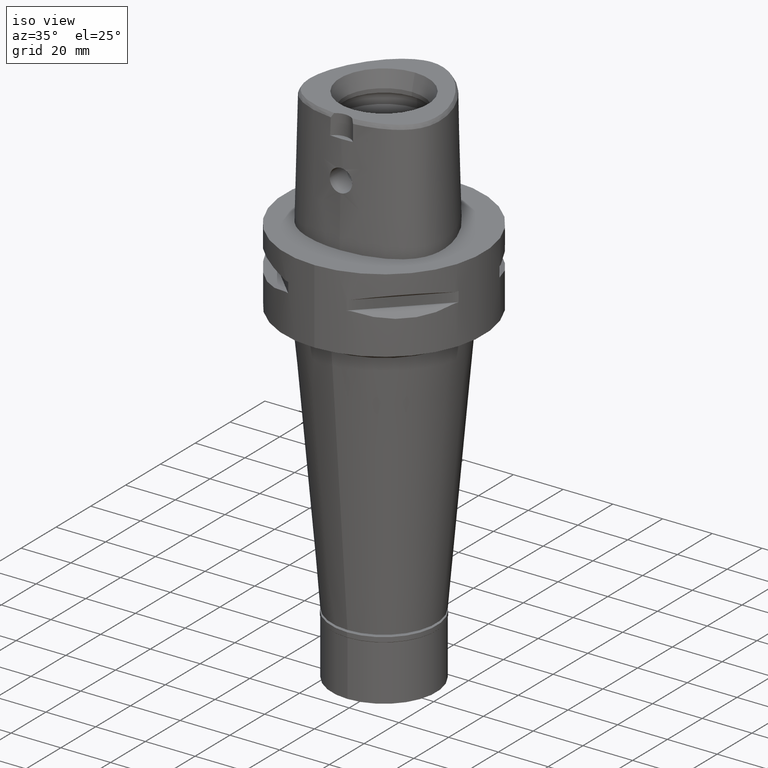
[diagram: clean part render]
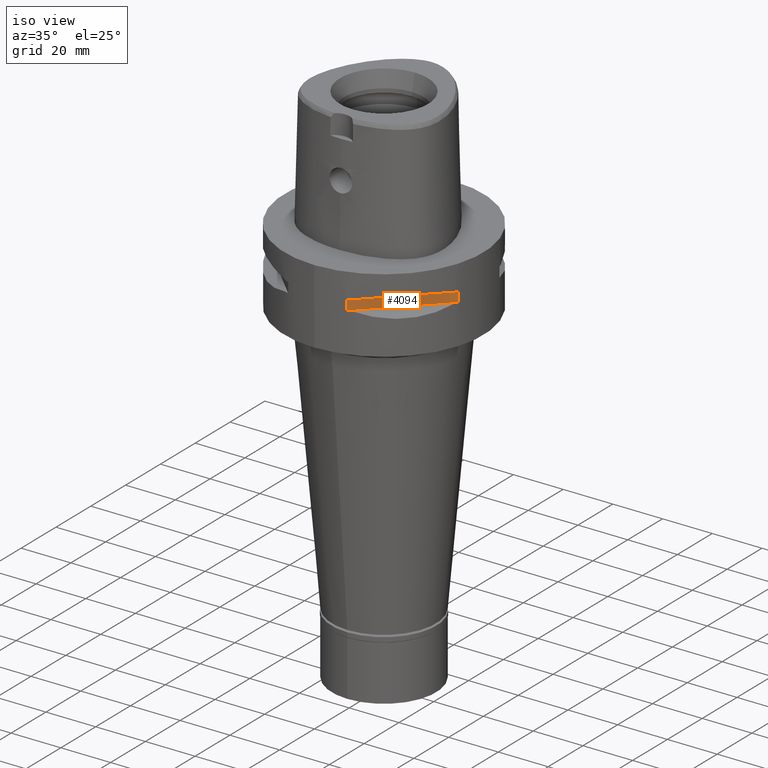
[diagram: same view with one face highlighted and labeled with its STEP entity id]
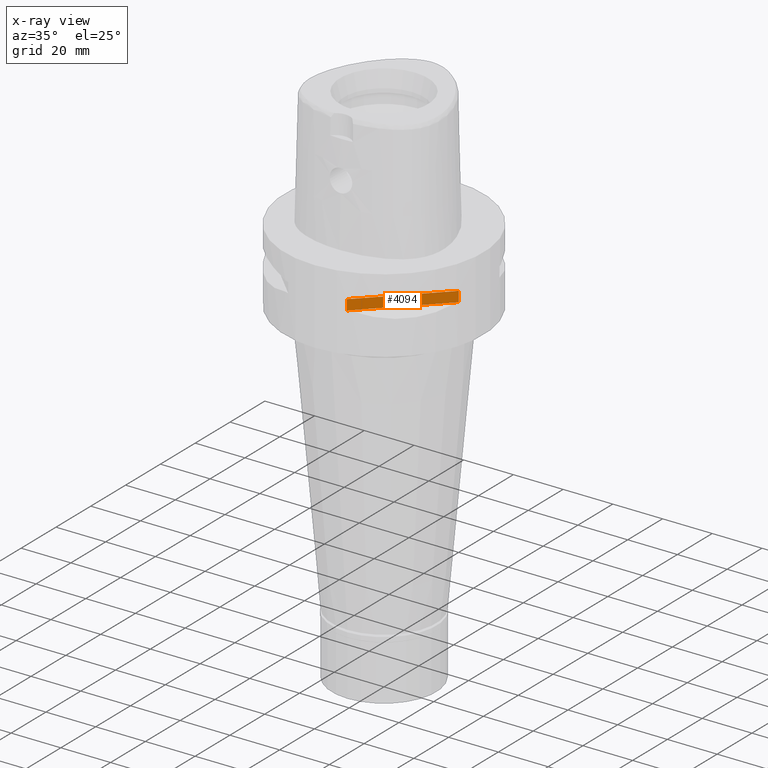
[diagram: x-ray of the same camera — body ghosted, the highlighted face saturated]
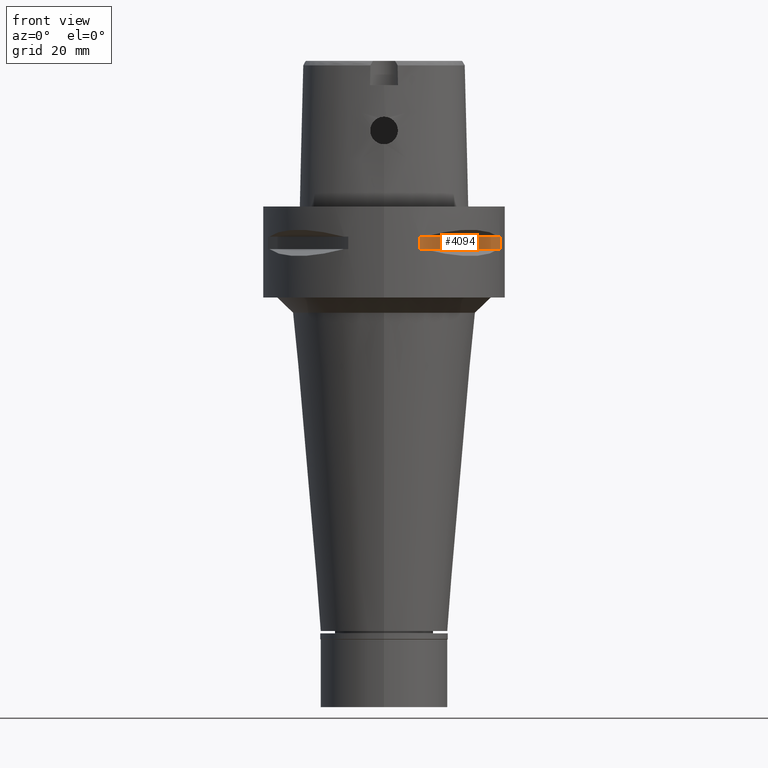
[diagram: same view with one face highlighted and labeled with its STEP entity id]
A machine part, iso view. The second image highlights one B-rep face of the part: STEP entity #4094.
The next image is the same camera in x-ray: the body ghosted, the highlighted face saturated — about 0% of this face is hidden behind the body in this view.
A second angle (front view) of the same face is appended — the face is thin or edge-on in the first view.
In plain terms, the highlighted planar face has unit normal (-0.7071, 0.7071, 0).
Its self-contained STEP definition (entity closure, byte-faithful):
#62 = CARTESIAN_POINT ( 'NONE',  ( 11.76033600280999991, -38.23211342708000160, -9.950000000000001066 ) ) ;
#363 = VECTOR ( 'NONE', #2994, 1000.000000000000000 ) ;
#414 = CARTESIAN_POINT ( 'NONE',  ( 11.76033600280999991, -38.23211342708000160, -9.950000000000001066 ) ) ;
#576 = DIRECTION ( 'NONE',  ( 0.0000000000000000000, 0.0000000000000000000, -1.000000000000000000 ) ) ;
#593 = VECTOR ( 'NONE', #576, 1000.000000000000000 ) ;
#684 = EDGE_CURVE ( 'NONE', #2365, #4806, #2127, .T. ) ;
#1074 = EDGE_CURVE ( 'NONE', #4806, #2838, #1700, .T. ) ;
#1178 = EDGE_LOOP ( 'NONE', ( #1202, #4424, #4679, #2623 ) ) ;
#1202 = ORIENTED_EDGE ( 'NONE', *, *, #4818, .F. ) ;
#1437 = CARTESIAN_POINT ( 'NONE',  ( 38.23211342708000160, -11.76033600280999991, -14.05000000000000071 ) ) ;
#1466 = LINE ( 'NONE', #1437, #363 ) ;
#1543 = AXIS2_PLACEMENT_3D ( 'NONE', #5000, #2679, #2222 ) ;
#1560 = LINE ( 'NONE', #414, #2486 ) ;
#1700 = LINE ( 'NONE', #4468, #3456 ) ;
#1842 = PLANE ( 'NONE',  #1543 ) ;
#2127 = LINE ( 'NONE', #4541, #593 ) ;
#2195 = FACE_OUTER_BOUND ( 'NONE', #1178, .T. ) ;
#2222 = DIRECTION ( 'NONE',  ( 0.0000000000000000000, 0.0000000000000000000, 1.000000000000000000 ) ) ;
#2365 = VERTEX_POINT ( 'NONE', #62 ) ;
#2486 = VECTOR ( 'NONE', #4855, 1000.000000000000114 ) ;
#2623 = ORIENTED_EDGE ( 'NONE', *, *, #4028, .T. ) ;
#2679 = DIRECTION ( 'NONE',  ( -0.7071067811865475727, 0.7071067811865475727, 0.0000000000000000000 ) ) ;
#2838 = VERTEX_POINT ( 'NONE', #5010 ) ;
#2880 = DIRECTION ( 'NONE',  ( 0.7071067811865474617, 0.7071067811865474617, 0.0000000000000000000 ) ) ;
#2994 = DIRECTION ( 'NONE',  ( 0.0000000000000000000, 0.0000000000000000000, 1.000000000000000000 ) ) ;
#3456 = VECTOR ( 'NONE', #2880, 1000.000000000000114 ) ;
#3991 = CARTESIAN_POINT ( 'NONE',  ( 38.23211342708000160, -11.76033600280999991, -9.950000000000001066 ) ) ;
#4028 = EDGE_CURVE ( 'NONE', #2838, #4538, #1466, .T. ) ;
#4094 = ADVANCED_FACE ( 'NONE', ( #2195 ), #1842, .F. ) ;
#4096 = CARTESIAN_POINT ( 'NONE',  ( 11.76033600280999991, -38.23211342708000160, -14.05000000000000071 ) ) ;
#4424 = ORIENTED_EDGE ( 'NONE', *, *, #684, .T. ) ;
#4468 = CARTESIAN_POINT ( 'NONE',  ( 11.76033600280999991, -38.23211342708000160, -14.05000000000000071 ) ) ;
#4538 = VERTEX_POINT ( 'NONE', #3991 ) ;
#4541 = CARTESIAN_POINT ( 'NONE',  ( 11.76033600280999991, -38.23211342708000160, -9.950000000000001066 ) ) ;
#4679 = ORIENTED_EDGE ( 'NONE', *, *, #1074, .T. ) ;
#4806 = VERTEX_POINT ( 'NONE', #4096 ) ;
#4818 = EDGE_CURVE ( 'NONE', #2365, #4538, #1560, .T. ) ;
#4855 = DIRECTION ( 'NONE',  ( 0.7071067811865474617, 0.7071067811865474617, 0.0000000000000000000 ) ) ;
#5000 = CARTESIAN_POINT ( 'NONE',  ( 42.67389424461000402, -7.318555185280999353, -9.950000000000001066 ) ) ;
#5010 = CARTESIAN_POINT ( 'NONE',  ( 38.23211342708000160, -11.76033600280999991, -14.05000000000000071 ) ) ;